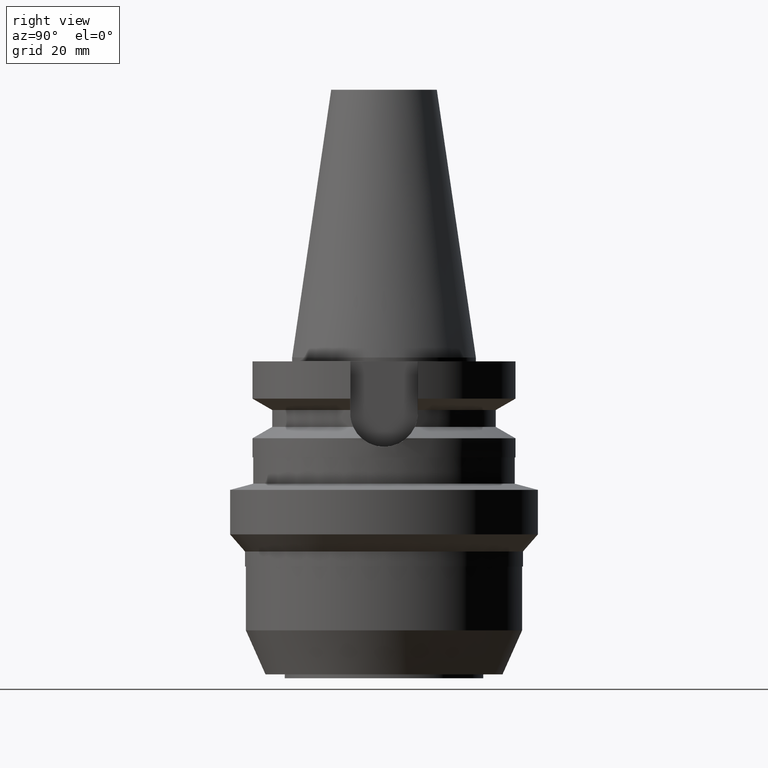
[diagram: clean part render]
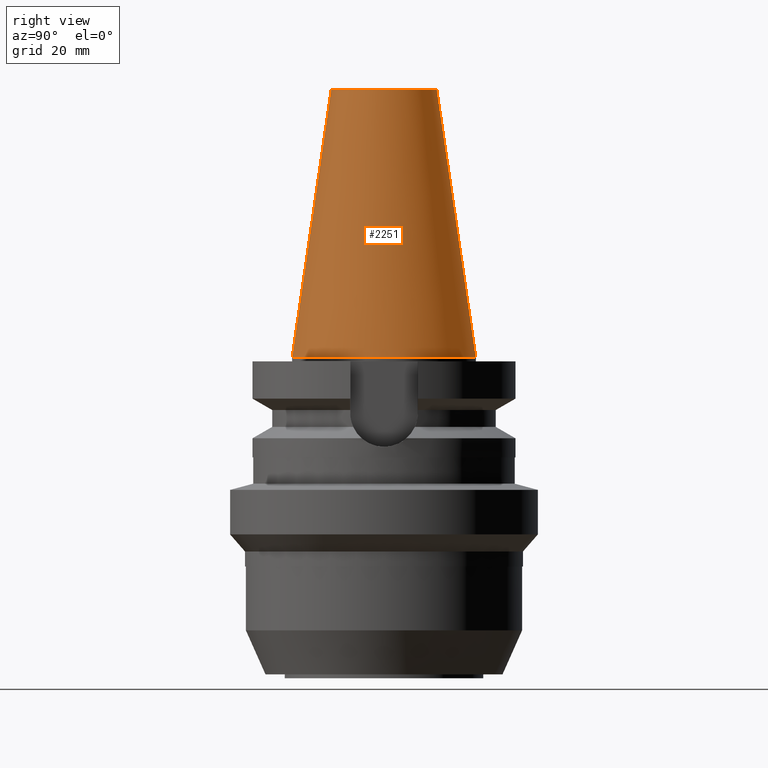
[diagram: same view with one face highlighted and labeled with its STEP entity id]
A machine part, right view. The second image highlights one B-rep face of the part: STEP entity #2251.
In plain terms, the highlighted conical surface has half-angle 8.297 deg.
Its self-contained STEP definition (entity closure, byte-faithful):
#1039=DIRECTION('',(0.E0,-1.443043893539E-1,-9.895333461856E-1));
#1040=VECTOR('',#1039,1.028767755957E2);
#1041=CARTESIAN_POINT('',(0.E0,-2.007942971896E1,1.018E2));
#1042=LINE('',#1041,#1040);
#1054=DIRECTION('',(0.E0,1.443043893539E-1,-9.895333461856E-1));
#1055=VECTOR('',#1054,1.028767755957E2);
#1056=CARTESIAN_POINT('',(0.E0,2.007942971896E1,1.018E2));
#1057=LINE('',#1056,#1055);
#1061=CARTESIAN_POINT('',(0.E0,0.E0,-5.115907697473E-13));
#1062=DIRECTION('',(0.E0,0.E0,-1.E0));
#1063=DIRECTION('',(0.E0,1.E0,0.E0));
#1064=AXIS2_PLACEMENT_3D('',#1061,#1062,#1063);
#1077=CARTESIAN_POINT('',(0.E0,0.E0,1.018E2));
#1078=DIRECTION('',(0.E0,0.E0,-1.E0));
#1079=DIRECTION('',(0.E0,1.E0,0.E0));
#1080=AXIS2_PLACEMENT_3D('',#1077,#1078,#1079);
#1338=CARTESIAN_POINT('',(0.E0,3.4925E1,-3.907985046681E-13));
#1339=VERTEX_POINT('',#1338);
#1340=CARTESIAN_POINT('',(0.E0,-3.4925E1,-3.907985046681E-13));
#1341=VERTEX_POINT('',#1340);
#1342=CARTESIAN_POINT('',(0.E0,2.007942971896E1,1.018E2));
#1343=VERTEX_POINT('',#1342);
#1344=CARTESIAN_POINT('',(0.E0,-2.007942971896E1,1.018E2));
#1345=VERTEX_POINT('',#1344);
#2239=CARTESIAN_POINT('',(0.E0,0.E0,5.09E1));
#2240=DIRECTION('',(0.E0,0.E0,-1.E0));
#2241=DIRECTION('',(0.E0,-1.E0,0.E0));
#2242=AXIS2_PLACEMENT_3D('',#2239,#2240,#2241);
#2243=CONICAL_SURFACE('',#2242,2.750221485948E1,8.297E0);
#2244=ORIENTED_EDGE('',*,*,#2229,.T.);
#2245=ORIENTED_EDGE('',*,*,#2206,.T.);
#2246=ORIENTED_EDGE('',*,*,#2233,.F.);
#2248=ORIENTED_EDGE('',*,*,#2247,.F.);
#2249=EDGE_LOOP('',(#2244,#2245,#2246,#2248));
#2250=FACE_OUTER_BOUND('',#2249,.F.);
#1065=CIRCLE('',#1064,3.4925E1);
#1081=CIRCLE('',#1080,2.007942971896E1);
#2206=EDGE_CURVE('',#1339,#1341,#1065,.T.);
#2229=EDGE_CURVE('',#1343,#1339,#1057,.T.);
#2233=EDGE_CURVE('',#1345,#1341,#1042,.T.);
#2247=EDGE_CURVE('',#1343,#1345,#1081,.T.);
#2251=ADVANCED_FACE('',(#2250),#2243,.T.);